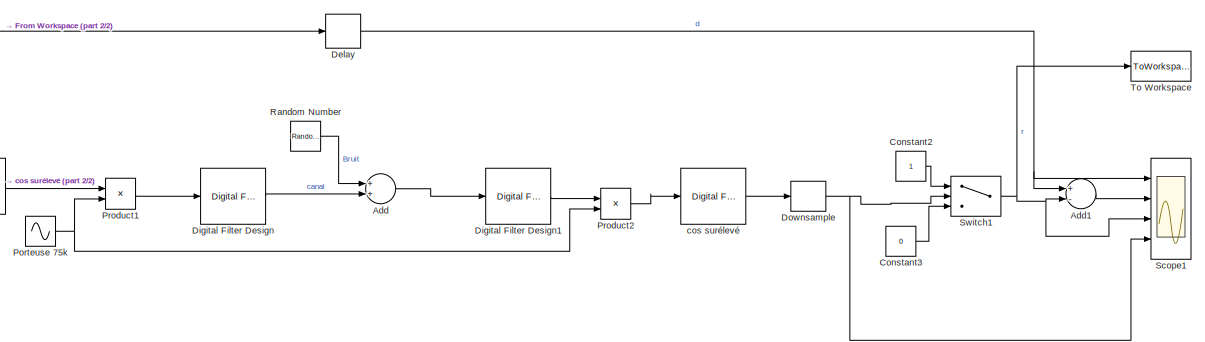
[diagram: root canvas - part 1/2, most of the canvas]
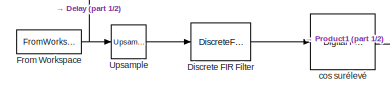
[diagram: root canvas - part 2/2, middle left region]
MODEL slx_5e4928d485ee
KIND model
CONFIG AbsTol = auto
CONFIG FixedStep = 1/2000000
CONFIG MaxStep = auto
CONFIG MinStep = auto
CONFIG RelTol = 1e-3
CONFIG SampleTimeConstraint = Unconstrained
CONFIG Solver = FixedStepDiscrete
CONFIG SolverMode = Auto
CONFIG SolverName = FixedStepDiscrete
CONFIG StartTime = 0.0
CONFIG StopTime = 1.1
BLOCK [Sum] Add
  InputSameDT = off
  OutDataTypeStr = Inherit: Inherit via internal rule
  Ports = [2, 1]
  SaturateOnIntegerOverflow = off
BLOCK [Sum] Add1
  InputSameDT = off
  Inputs = +-
  OutDataTypeStr = Inherit: Inherit via internal rule
  Ports = [2, 1]
  SaturateOnIntegerOverflow = off
BLOCK [Constant] Constant2
  SampleTime = -1
BLOCK [Constant] Constant3
  SampleTime = -1
  Value = 0
BLOCK [Delay] Delay
  DelayLength = 3
  InitialCondition = 0
  InputPortMap = u0
  Ports = [1, 1]
BLOCK [Reference] Digital Filter Design  REF=dsparch4/Digital
Filter Design
  Ports = [1, 1]
  SourceBlock = dsparch4/Digital\nFilter Design
  SourceType = Digital Filter Design
  UserDataPersistent = on
BLOCK [Reference] Digital Filter Design1  REF=dsparch4/Digital
Filter Design
  Ports = [1, 1]
  SourceBlock = dsparch4/Digital\nFilter Design
  SourceType = Digital Filter Design
  UserDataPersistent = on
BLOCK [DiscreteFir] Discrete FIR Filter
  Coefficients = ones(1,2000)
  InputPortMap = u0
  OutputPortMap = o0
  Ports = [1, 1]
BLOCK [DownSample] Downsample
  N = 2000
  RateOptions = Allow multirate processing
BLOCK [FromWorkspace] From Workspace
  SampleTime = 1/1000
  VariableName = fsk_input
  ZeroCross = on
BLOCK [Sin] Porteuse 75k
  Frequency = 75000*2*pi
  Ports = [0, 1]
  SampleTime = 1/2000000
BLOCK [Product] Product1
  InputSameDT = off
  OutDataTypeStr = Inherit: Inherit via internal rule
  Ports = [2, 1]
  RndMeth = Floor
  SaturateOnIntegerOverflow = off
BLOCK [Product] Product2
  InputSameDT = off
  OutDataTypeStr = Inherit: Inherit via internal rule
  Ports = [2, 1]
  RndMeth = Floor
  SaturateOnIntegerOverflow = off
BLOCK [RandomNumber] Random Number
  SampleTime = 1/2000000
  Variance = 20
BLOCK [Scope] Scope1
  NumInputPorts = 4
  Ports = [4]
  ScopeSpecificationString = Simulink.scopes.TimeScopeBlockCfg('CurrentConfiguration', extmgr.ConfigurationSet(extmgr.Configuration('Core','General UI',true),extmgr.Configuration('Core','Source UI',true),extmgr.Configuration('Sources','WiredSimulink',true,'DataLoggingVariableName','ScopeData1'),extmgr.Configuration('Visuals','Time Domain',true,'SerializedDisplays',{struct('MinYLimReal','-0.125','MaxYLimReal','1.125','YLabelRe...<+3451ch>
BLOCK [Switch] Switch1
  Criteria = u2 > Threshold
  InputSameDT = off
  SaturateOnIntegerOverflow = off
  Threshold = 0.22
BLOCK [ToWorkspace] To Workspace
  FixptAsFi = on
  MaxDataPoints = inf
  Ports = [1]
  SampleTime = -1
  Save2DSignal = 2-D array (concatenate along first dimension)
  VariableName = fsk_output
BLOCK [Reference] Upsample  REF=dspsigops/Upsample
  Ports = [1, 1]
  SourceBlock = dspsigops/Upsample
  SourceType = Upsample
  UserDataPersistent = on
BLOCK [Reference] cos surélevé  REF=dsparch4/Digital
Filter Design
  Ports = [1, 1]
  SourceBlock = dsparch4/Digital\nFilter Design
  SourceType = Digital Filter Design
  UserDataPersistent = on
BLOCK [Reference] cos surélevé   REF=dsparch4/Digital
Filter Design
  Ports = [1, 1]
  SourceBlock = dsparch4/Digital\nFilter Design
  SourceType = Digital Filter Design
  UserDataPersistent = on
LINE Add1:1 -> Scope1:2
LINE Add:1 -> Digital Filter Design1:1
LINE Constant2:1 -> Switch1:1
LINE Constant3:1 -> Switch1:3
NET Delay:1 -> Add1:1, Scope1:1
LINE Digital Filter Design1:1 -> Product2:1
LINE Digital Filter Design:1 -> Add:2
LINE Discrete FIR Filter:1 -> cos surélevé:1
NET Downsample:1 -> Scope1:4, Switch1:2
NET From Workspace:1 -> Delay:1, Upsample:1
NET Porteuse 75k:1 -> Product1:2, Product2:2
LINE Product1:1 -> Digital Filter Design:1
LINE Product2:1 -> cos surélevé :1
LINE Random Number:1 -> Add:1
NET Switch1:1 -> Add1:2, Scope1:3, To Workspace:1
LINE Upsample:1 -> Discrete FIR Filter:1
LINE cos surélevé :1 -> Downsample:1
LINE cos surélevé:1 -> Product1:1
note: NET lines group one-source signal fan-out (src -> all destinations, sorted); 1:1 wires keep LINE
